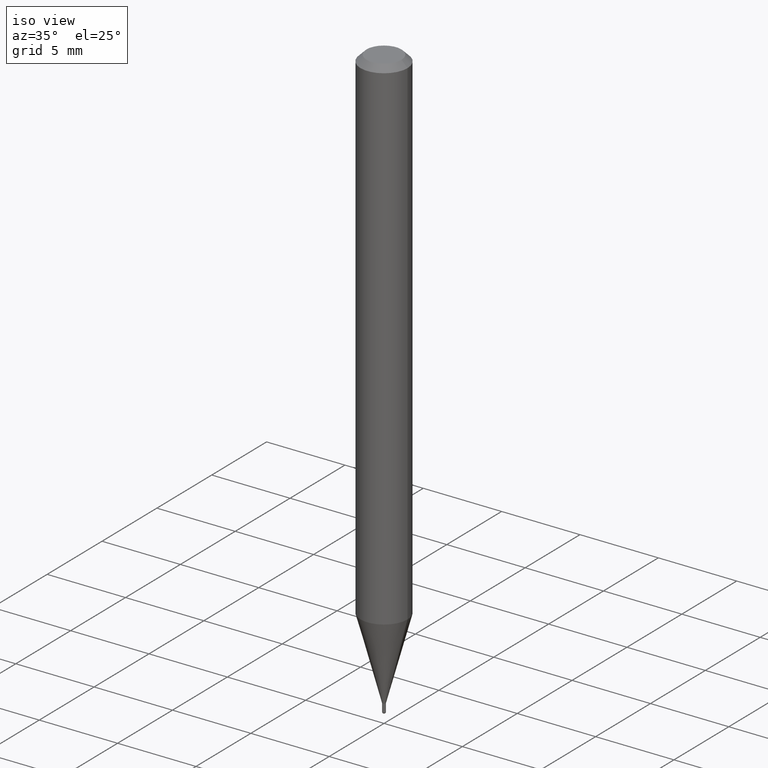
[diagram: clean part render]
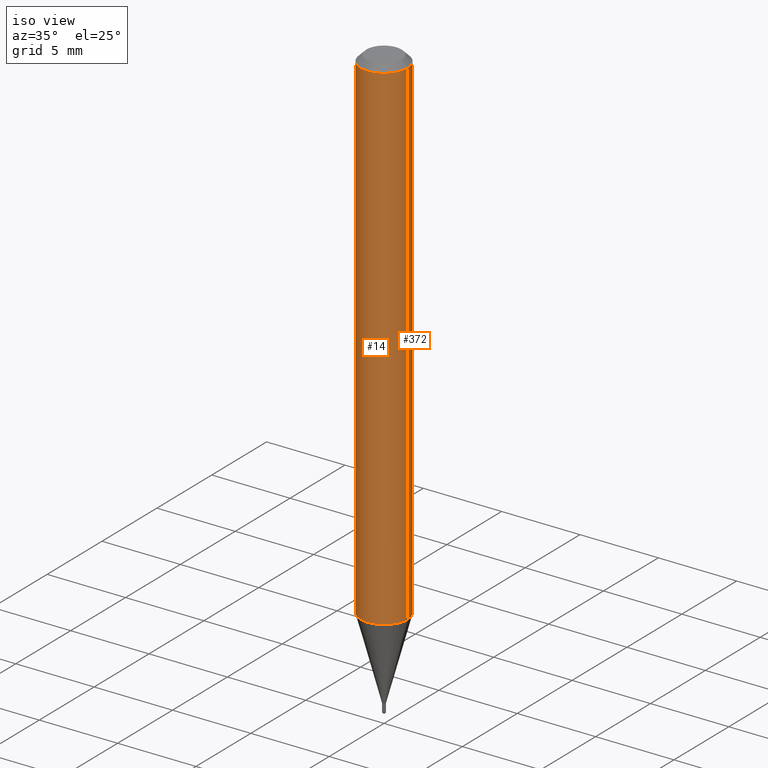
[diagram: same view with one multi-face feature highlighted, each face labeled with its STEP entity id]
A machine part, iso view. The highlighted faces form ONE feature: a constant-radius fillet chain: 2 tangent blend faces with common blend radius 1.4999 mm. The faces share edges in the B-rep.
Their STEP definitions:
[1] entity #14 (Cylinder):
#14 = ADVANCED_FACE ( 'NONE', ( #262 ), #52, .T. ) ;
#26 = VERTEX_POINT ( 'NONE', #143 ) ;
#28 = CARTESIAN_POINT ( 'NONE',  ( 0.05904999999999999832, -4.123439461173740327E-16, 2.879382386107500220E-30 ) ) ;
#48 = VERTEX_POINT ( 'NONE', #167 ) ;
#52 = CYLINDRICAL_SURFACE ( 'NONE', #207, 0.05904999999999999832 ) ;
#56 = DIRECTION ( 'NONE',  ( 1.000000000000000000, -6.982962677686266711E-15, 4.876176775795936353E-29 ) ) ;
#59 = VERTEX_POINT ( 'NONE', #329 ) ;
#61 = CARTESIAN_POINT ( 'NONE',  ( -0.05904999999999999832, 4.195754854663391478E-16, -2.904631170795521892E-30 ) ) ;
#91 = CIRCLE ( 'NONE', #342, 0.05904999999999999832 ) ;
#101 = VECTOR ( 'NONE', #496, 39.37007874015748143 ) ;
#109 = DIRECTION ( 'NONE',  ( -2.445468806185136597E-29, 3.491481338843145583E-15, 1.000000000000000000 ) ) ;
#111 = DIRECTION ( 'NONE',  ( 1.000000000000000000, -6.982962677686273021E-15, 0.000000000000000000 ) ) ;
#116 = VERTEX_POINT ( 'NONE', #216 ) ;
#121 = CARTESIAN_POINT ( 'NONE',  ( 3.668203209277724356E-31, -5.237222008264746748E-17, -0.01500000000000008098 ) ) ;
#126 = CIRCLE ( 'NONE', #181, 0.05904999999999999832 ) ;
#137 = EDGE_CURVE ( 'NONE', #26, #48, #168, .T. ) ;
#140 = ORIENTED_EDGE ( 'NONE', *, *, #173, .T. ) ;
#141 = EDGE_LOOP ( 'NONE', ( #382, #140, #502, #338 ) ) ;
#143 = CARTESIAN_POINT ( 'NONE',  ( -0.05904999999999999832, -4.003656531141925753E-15, -1.266864000502962107 ) ) ;
#155 = EDGE_CURVE ( 'NONE', #48, #116, #126, .T. ) ;
#167 = CARTESIAN_POINT ( 'NONE',  ( -0.05904999999999999832, -1.818226632879117656E-15, -0.01500000000000008098 ) ) ;
#168 = LINE ( 'NONE', #61, #101 ) ;
#172 = CARTESIAN_POINT ( 'NONE',  ( 0.000000000000000000, 0.000000000000000000, 0.000000000000000000 ) ) ;
#173 = EDGE_CURVE ( 'NONE', #26, #59, #91, .T. ) ;
#181 = AXIS2_PLACEMENT_3D ( 'NONE', #121, #109, #460 ) ;
#207 = AXIS2_PLACEMENT_3D ( 'NONE', #172, #214, #56 ) ;
#214 = DIRECTION ( 'NONE',  ( -2.445468806185136597E-29, 3.491481338843145583E-15, 1.000000000000000000 ) ) ;
#216 = CARTESIAN_POINT ( 'NONE',  ( 0.05904999999999999832, -4.647161662000215063E-16, -0.01500000000000008098 ) ) ;
#262 = FACE_OUTER_BOUND ( 'NONE', #141, .T. ) ;
#267 = DIRECTION ( 'NONE',  ( -2.445468806185136597E-29, 3.491481338843145583E-15, 1.000000000000000000 ) ) ;
#329 = CARTESIAN_POINT ( 'NONE',  ( 0.05904999999999999832, -4.835575962725639377E-15, -1.266864000502962107 ) ) ;
#338 = ORIENTED_EDGE ( 'NONE', *, *, #155, .F. ) ;
#342 = AXIS2_PLACEMENT_3D ( 'NONE', #375, #267, #111 ) ;
#348 = DIRECTION ( 'NONE',  ( -2.445468806185136877E-29, 3.491481338843145188E-15, 1.000000000000000000 ) ) ;
#375 = CARTESIAN_POINT ( 'NONE',  ( 3.098076394908904962E-29, -4.423232016608266035E-15, -1.266864000502962107 ) ) ;
#378 = EDGE_CURVE ( 'NONE', #59, #116, #384, .T. ) ;
#382 = ORIENTED_EDGE ( 'NONE', *, *, #137, .F. ) ;
#384 = LINE ( 'NONE', #28, #430 ) ;
#430 = VECTOR ( 'NONE', #348, 39.37007874015748143 ) ;
#460 = DIRECTION ( 'NONE',  ( 1.000000000000000000, -6.982962677686266711E-15, 0.000000000000000000 ) ) ;
#496 = DIRECTION ( 'NONE',  ( -2.445468806185136877E-29, 3.491481338843145188E-15, 1.000000000000000000 ) ) ;
#502 = ORIENTED_EDGE ( 'NONE', *, *, #378, .T. ) ;
[2] entity #372 (Cylinder):
#1 = ORIENTED_EDGE ( 'NONE', *, *, #29, .T. ) ;
#20 = CARTESIAN_POINT ( 'NONE',  ( 3.098076394908904962E-29, -4.423232016608266035E-15, -1.266864000502962107 ) ) ;
#26 = VERTEX_POINT ( 'NONE', #143 ) ;
#28 = CARTESIAN_POINT ( 'NONE',  ( 0.05904999999999999832, -4.123439461173740327E-16, 2.879382386107500220E-30 ) ) ;
#29 = EDGE_CURVE ( 'NONE', #59, #26, #282, .T. ) ;
#48 = VERTEX_POINT ( 'NONE', #167 ) ;
#59 = VERTEX_POINT ( 'NONE', #329 ) ;
#61 = CARTESIAN_POINT ( 'NONE',  ( -0.05904999999999999832, 4.195754854663391478E-16, -2.904631170795521892E-30 ) ) ;
#101 = VECTOR ( 'NONE', #496, 39.37007874015748143 ) ;
#116 = VERTEX_POINT ( 'NONE', #216 ) ;
#124 = AXIS2_PLACEMENT_3D ( 'NONE', #20, #177, #457 ) ;
#137 = EDGE_CURVE ( 'NONE', #26, #48, #168, .T. ) ;
#142 = EDGE_CURVE ( 'NONE', #116, #48, #180, .T. ) ;
#143 = CARTESIAN_POINT ( 'NONE',  ( -0.05904999999999999832, -4.003656531141925753E-15, -1.266864000502962107 ) ) ;
#150 = ORIENTED_EDGE ( 'NONE', *, *, #378, .F. ) ;
#158 = EDGE_LOOP ( 'NONE', ( #1, #223, #176, #150 ) ) ;
#167 = CARTESIAN_POINT ( 'NONE',  ( -0.05904999999999999832, -1.818226632879117656E-15, -0.01500000000000008098 ) ) ;
#168 = LINE ( 'NONE', #61, #101 ) ;
#176 = ORIENTED_EDGE ( 'NONE', *, *, #142, .F. ) ;
#177 = DIRECTION ( 'NONE',  ( -2.445468806185136597E-29, 3.491481338843145583E-15, 1.000000000000000000 ) ) ;
#180 = CIRCLE ( 'NONE', #471, 0.05904999999999999832 ) ;
#188 = DIRECTION ( 'NONE',  ( -2.445468806185136597E-29, 3.491481338843145583E-15, 1.000000000000000000 ) ) ;
#199 = FACE_OUTER_BOUND ( 'NONE', #158, .T. ) ;
#216 = CARTESIAN_POINT ( 'NONE',  ( 0.05904999999999999832, -4.647161662000215063E-16, -0.01500000000000008098 ) ) ;
#223 = ORIENTED_EDGE ( 'NONE', *, *, #137, .T. ) ;
#234 = DIRECTION ( 'NONE',  ( 1.000000000000000000, -6.982962677686266711E-15, 4.876176775795936353E-29 ) ) ;
#282 = CIRCLE ( 'NONE', #124, 0.05904999999999999832 ) ;
#283 = AXIS2_PLACEMENT_3D ( 'NONE', #478, #188, #234 ) ;
#329 = CARTESIAN_POINT ( 'NONE',  ( 0.05904999999999999832, -4.835575962725639377E-15, -1.266864000502962107 ) ) ;
#341 = CARTESIAN_POINT ( 'NONE',  ( 3.668203209277724356E-31, -5.237222008264746748E-17, -0.01500000000000008098 ) ) ;
#345 = CYLINDRICAL_SURFACE ( 'NONE', #283, 0.05904999999999999832 ) ;
#348 = DIRECTION ( 'NONE',  ( -2.445468806185136877E-29, 3.491481338843145188E-15, 1.000000000000000000 ) ) ;
#372 = ADVANCED_FACE ( 'NONE', ( #199 ), #345, .T. ) ;
#378 = EDGE_CURVE ( 'NONE', #59, #116, #384, .T. ) ;
#384 = LINE ( 'NONE', #28, #430 ) ;
#430 = VECTOR ( 'NONE', #348, 39.37007874015748143 ) ;
#457 = DIRECTION ( 'NONE',  ( 1.000000000000000000, -6.982962677686273021E-15, 0.000000000000000000 ) ) ;
#471 = AXIS2_PLACEMENT_3D ( 'NONE', #341, #497, #490 ) ;
#478 = CARTESIAN_POINT ( 'NONE',  ( 0.000000000000000000, 0.000000000000000000, 0.000000000000000000 ) ) ;
#490 = DIRECTION ( 'NONE',  ( 1.000000000000000000, -6.982962677686266711E-15, 0.000000000000000000 ) ) ;
#496 = DIRECTION ( 'NONE',  ( -2.445468806185136877E-29, 3.491481338843145188E-15, 1.000000000000000000 ) ) ;
#497 = DIRECTION ( 'NONE',  ( -2.445468806185136597E-29, 3.491481338843145583E-15, 1.000000000000000000 ) ) ;